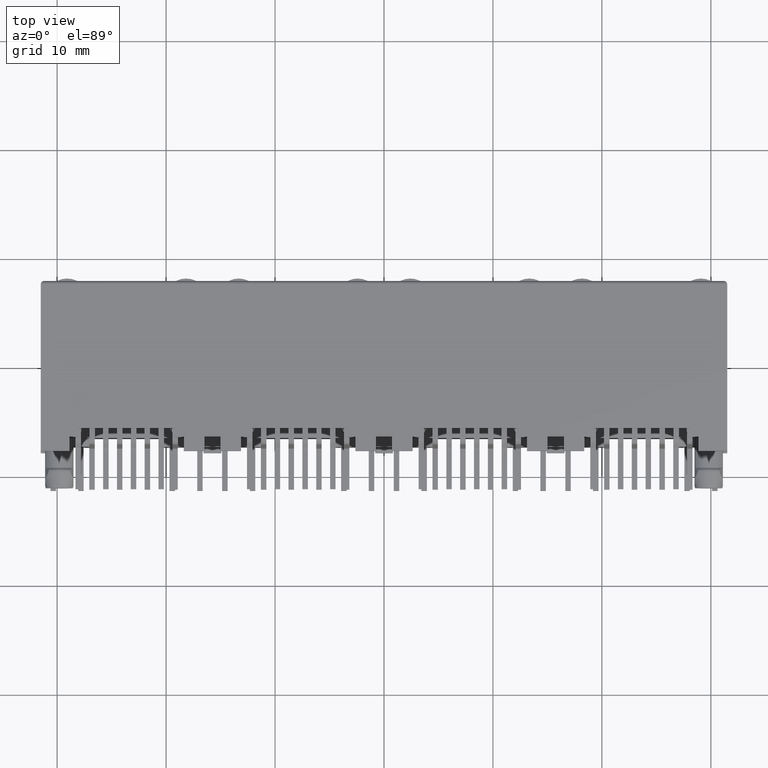
[diagram: clean part render]
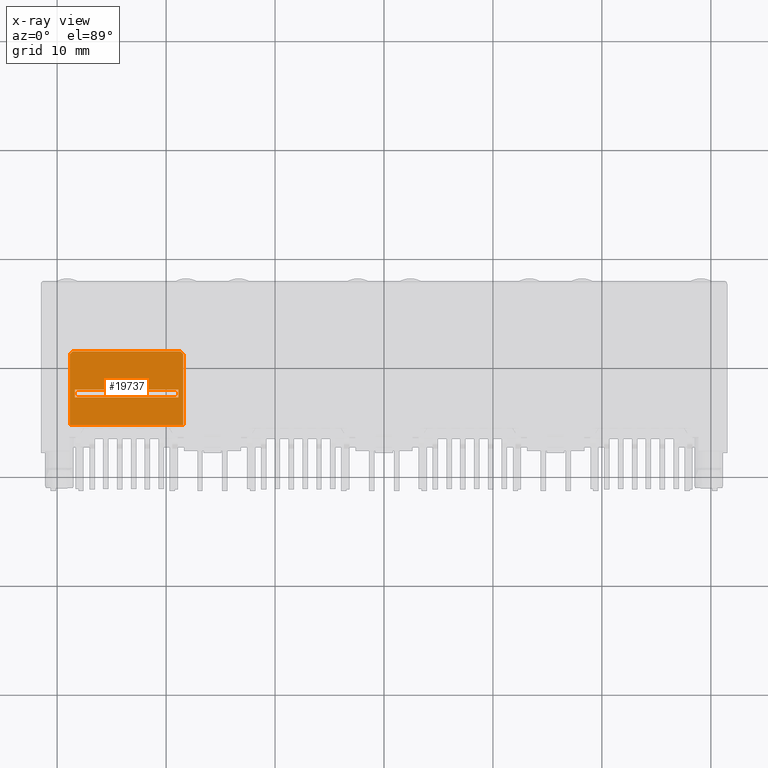
[diagram: x-ray — body ghosted, one internal face saturated and labeled with its STEP entity id]
A machine part, top view, then the same camera in x-ray: the body is ghosted and one INTERNAL B-rep face — a face not visible from any outside direction — is saturated and labeled: STEP entity #19737.
In plain terms, the highlighted planar face has unit normal (0, 0, 1).
Its self-contained STEP definition (entity closure, byte-faithful):
#180 = VERTEX_POINT ( 'NONE', #67019 ) ;
#832 = ORIENTED_EDGE ( 'NONE', *, *, #10470, .F. ) ;
#924 = CARTESIAN_POINT ( 'NONE',  ( -18.42500000000000100, 1.099999999995018500, 5.649999999999999500 ) ) ;
#1800 = DIRECTION ( 'NONE',  ( 0.0000000000000000000, 1.000000000000000000, 0.0000000000000000000 ) ) ;
#3718 = LINE ( 'NONE', #22564, #20678 ) ;
#5684 = ORIENTED_EDGE ( 'NONE', *, *, #13359, .F. ) ;
#5768 = CARTESIAN_POINT ( 'NONE',  ( -18.87500000000000000, -2.174999999999999800, 5.649999999999999500 ) ) ;
#5811 = EDGE_CURVE ( 'NONE', #66631, #31745, #50468, .T. ) ;
#7844 = CARTESIAN_POINT ( 'NONE',  ( -28.57500000000232300, 1.350000000002323300, 5.649999999999999500 ) ) ;
#7872 = EDGE_CURVE ( 'NONE', #52888, #53408, #64760, .T. ) ;
#8168 = CARTESIAN_POINT ( 'NONE',  ( -18.47700000000000000, 1.350000000000000100, 5.649999999999999500 ) ) ;
#8198 = EDGE_CURVE ( 'NONE', #11663, #59313, #3718, .T. ) ;
#9049 = EDGE_CURVE ( 'NONE', #52888, #31745, #40101, .T. ) ;
#10470 = EDGE_CURVE ( 'NONE', #59313, #34721, #47617, .T. ) ;
#10558 = EDGE_CURVE ( 'NONE', #34721, #180, #21266, .T. ) ;
#11229 = DIRECTION ( 'NONE',  ( 0.7071067811719705700, -0.7071067812011243600, 0.0000000000000000000 ) ) ;
#11663 = VERTEX_POINT ( 'NONE', #64035 ) ;
#12513 = CARTESIAN_POINT ( 'NONE',  ( -28.37500000000000000, -2.874999999999999600, 5.649999999999999500 ) ) ;
#13359 = EDGE_CURVE ( 'NONE', #53408, #66631, #41666, .T. ) ;
#15079 = LINE ( 'NONE', #8168, #53203 ) ;
#16642 = CARTESIAN_POINT ( 'NONE',  ( -18.68500000000000200, -2.174999999999999800, 5.649999999999999500 ) ) ;
#17170 = DIRECTION ( 'NONE',  ( -1.000000000000000000, -0.0000000000000000000, -0.0000000000000000000 ) ) ;
#18306 = LINE ( 'NONE', #34276, #69208 ) ;
#18822 = VECTOR ( 'NONE', #66791, 1000.000000000000000 ) ;
#19737 = ADVANCED_FACE ( 'NONE', ( #34275, #30871 ), #25028, .T. ) ;
#20678 = VECTOR ( 'NONE', #11229, 1000.000000000000100 ) ;
#21266 = LINE ( 'NONE', #24553, #61144 ) ;
#21457 = VECTOR ( 'NONE', #1800, 1000.000000000000000 ) ;
#22564 = CARTESIAN_POINT ( 'NONE',  ( -18.73196406001999700, 1.406964060026999700, 5.649999999999998600 ) ) ;
#23002 = ORIENTED_EDGE ( 'NONE', *, *, #8198, .F. ) ;
#23840 = CARTESIAN_POINT ( 'NONE',  ( -18.42500000000000100, 1.236000000000000200, 5.649999999999999500 ) ) ;
#24553 = CARTESIAN_POINT ( 'NONE',  ( -18.21700000000000200, -5.449999999999999300, 5.649999999999999500 ) ) ;
#25028 = PLANE ( 'NONE',  #54863 ) ;
#26718 = ORIENTED_EDGE ( 'NONE', *, *, #10558, .F. ) ;
#28029 = VERTEX_POINT ( 'NONE', #36412 ) ;
#29763 = DIRECTION ( 'NONE',  ( -1.000000000000000000, 0.0000000000000000000, 0.0000000000000000000 ) ) ;
#30019 = EDGE_CURVE ( 'NONE', #42483, #11663, #15079, .T. ) ;
#30624 = ORIENTED_EDGE ( 'NONE', *, *, #64572, .T. ) ;
#30871 = FACE_OUTER_BOUND ( 'NONE', #46196, .T. ) ;
#31745 = VERTEX_POINT ( 'NONE', #12513 ) ;
#32825 = ORIENTED_EDGE ( 'NONE', *, *, #57676, .F. ) ;
#34275 = FACE_BOUND ( 'NONE', #60326, .T. ) ;
#34276 = CARTESIAN_POINT ( 'NONE',  ( -28.82499999999999900, -5.836000000000000300, 5.649999999999999500 ) ) ;
#34534 = DIRECTION ( 'NONE',  ( 0.0000000000000000000, 1.000000000000000000, -0.0000000000000000000 ) ) ;
#34721 = VERTEX_POINT ( 'NONE', #42633 ) ;
#36412 = CARTESIAN_POINT ( 'NONE',  ( -28.82499999999999900, 1.099999999995860300, 5.649999999999999500 ) ) ;
#37321 = CARTESIAN_POINT ( 'NONE',  ( -18.87500000000000000, -2.874999999999999100, 5.649999999999999500 ) ) ;
#38709 = CARTESIAN_POINT ( 'NONE',  ( -28.37500000000000000, -2.174999999999999800, 5.649999999999999500 ) ) ;
#40101 = LINE ( 'NONE', #60034, #69775 ) ;
#41666 = LINE ( 'NONE', #16642, #45889 ) ;
#42483 = VERTEX_POINT ( 'NONE', #43319 ) ;
#42633 = CARTESIAN_POINT ( 'NONE',  ( -18.42500000000000100, -5.449999999999999300, 5.649999999999999500 ) ) ;
#43319 = CARTESIAN_POINT ( 'NONE',  ( -28.57500000000456500, 1.350000000000082500, 5.649999999999999500 ) ) ;
#44709 = CARTESIAN_POINT ( 'NONE',  ( -18.87500000000000000, -2.955559346254999800, 5.649999999999999500 ) ) ;
#44783 = ORIENTED_EDGE ( 'NONE', *, *, #30019, .F. ) ;
#45889 = VECTOR ( 'NONE', #53794, 1000.000000000000000 ) ;
#45963 = CARTESIAN_POINT ( 'NONE',  ( -28.37500000000000000, -2.094440653744999500, 5.649999999999999500 ) ) ;
#46196 = EDGE_LOOP ( 'NONE', ( #44783, #30624, #32825, #26718, #832, #23002 ) ) ;
#46624 = CARTESIAN_POINT ( 'NONE',  ( -29.08500000000000100, 6.963999999999999500, 5.649999999999999500 ) ) ;
#47268 = ORIENTED_EDGE ( 'NONE', *, *, #9049, .T. ) ;
#47617 = LINE ( 'NONE', #23840, #18822 ) ;
#48895 = ORIENTED_EDGE ( 'NONE', *, *, #5811, .F. ) ;
#50468 = LINE ( 'NONE', #45963, #64001 ) ;
#51424 = DIRECTION ( 'NONE',  ( 0.0000000000000000000, -1.000000000000000000, 0.0000000000000000000 ) ) ;
#52888 = VERTEX_POINT ( 'NONE', #37321 ) ;
#53203 = VECTOR ( 'NONE', #61952, 1000.000000000000000 ) ;
#53408 = VERTEX_POINT ( 'NONE', #5768 ) ;
#53794 = DIRECTION ( 'NONE',  ( -1.000000000000000000, 0.0000000000000000000, 0.0000000000000000000 ) ) ;
#54643 = VECTOR ( 'NONE', #67121, 1000.000000000000000 ) ;
#54863 = AXIS2_PLACEMENT_3D ( 'NONE', #46624, #62964, #62028 ) ;
#57676 = EDGE_CURVE ( 'NONE', #180, #28029, #18306, .T. ) ;
#59313 = VERTEX_POINT ( 'NONE', #924 ) ;
#60034 = CARTESIAN_POINT ( 'NONE',  ( -28.56499999999999800, -2.874999999999999600, 5.649999999999999500 ) ) ;
#60309 = ORIENTED_EDGE ( 'NONE', *, *, #7872, .F. ) ;
#60326 = EDGE_LOOP ( 'NONE', ( #47268, #48895, #5684, #60309 ) ) ;
#61144 = VECTOR ( 'NONE', #29763, 1000.000000000000000 ) ;
#61952 = DIRECTION ( 'NONE',  ( 1.000000000000000000, -0.0000000000000000000, -0.0000000000000000000 ) ) ;
#62028 = DIRECTION ( 'NONE',  ( 0.0000000000000000000, -1.000000000000000000, 0.0000000000000000000 ) ) ;
#62964 = DIRECTION ( 'NONE',  ( -0.0000000000000000000, 0.0000000000000000000, 1.000000000000000000 ) ) ;
#64001 = VECTOR ( 'NONE', #51424, 1000.000000000000000 ) ;
#64035 = CARTESIAN_POINT ( 'NONE',  ( -18.67499999999535000, 1.350000000000007600, 5.649999999999999500 ) ) ;
#64572 = EDGE_CURVE ( 'NONE', #42483, #28029, #69118, .T. ) ;
#64760 = LINE ( 'NONE', #44709, #21457 ) ;
#66631 = VERTEX_POINT ( 'NONE', #38709 ) ;
#66791 = DIRECTION ( 'NONE',  ( 0.0000000000000000000, -1.000000000000000000, 0.0000000000000000000 ) ) ;
#67019 = CARTESIAN_POINT ( 'NONE',  ( -28.82499999999999600, -5.449999999999999300, 5.649999999999999500 ) ) ;
#67121 = DIRECTION ( 'NONE',  ( -0.7071067811719824500, -0.7071067812011125900, 0.0000000000000000000 ) ) ;
#69118 = LINE ( 'NONE', #7844, #54643 ) ;
#69208 = VECTOR ( 'NONE', #34534, 1000.000000000000000 ) ;
#69775 = VECTOR ( 'NONE', #17170, 1000.000000000000000 ) ;